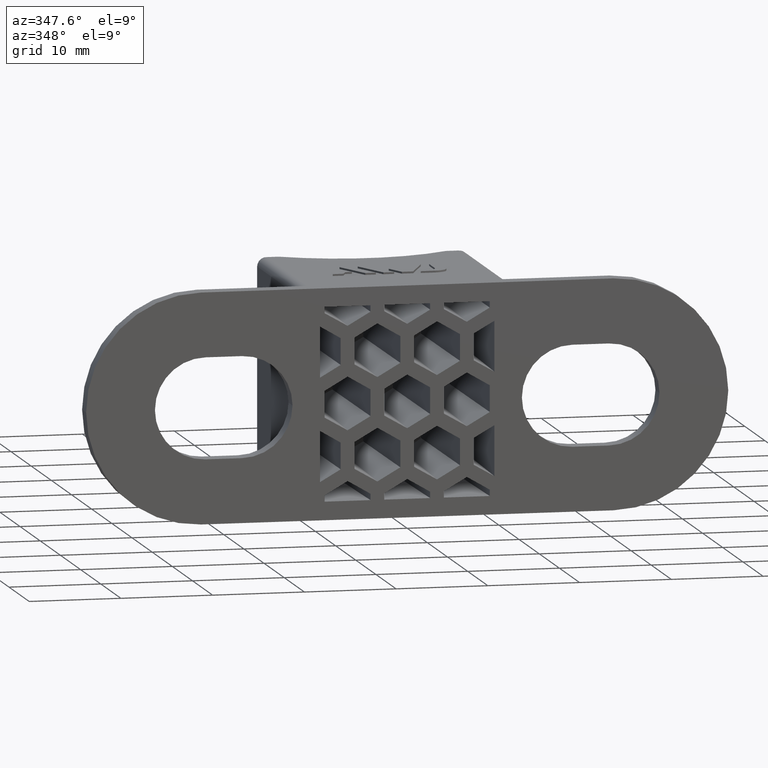
[diagram: clean part render]
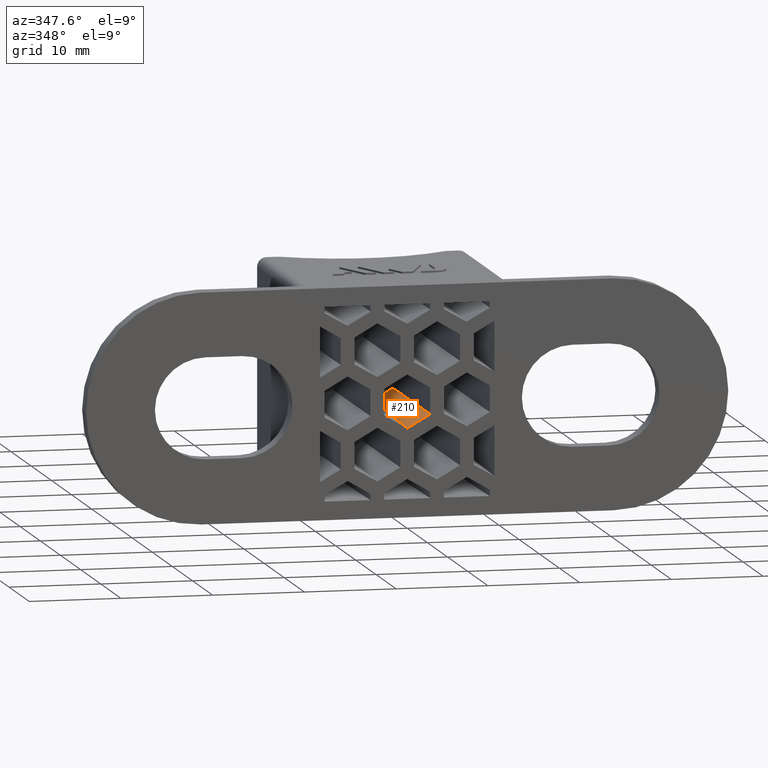
[diagram: same view with one face highlighted and labeled with its STEP entity id]
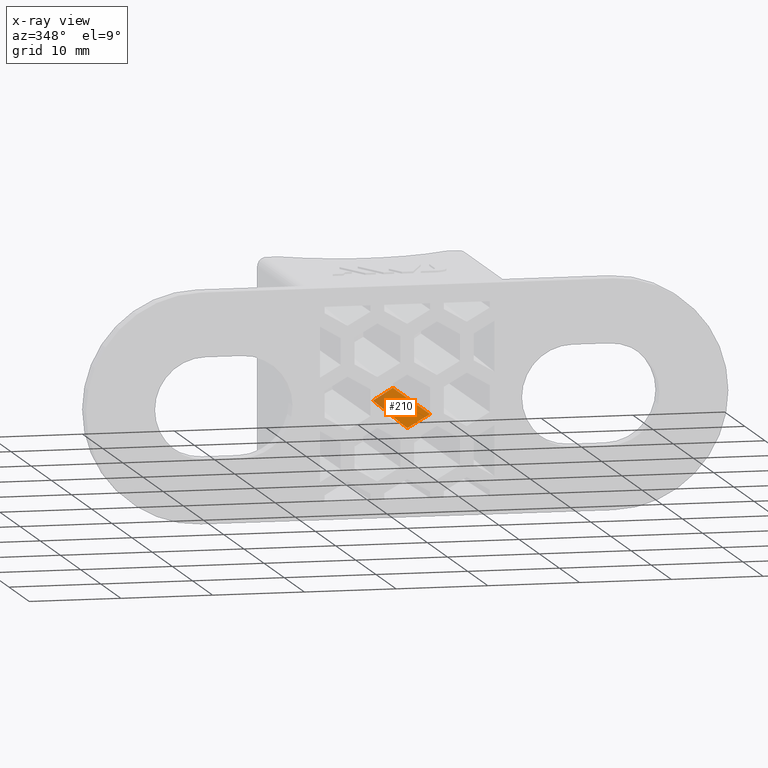
[diagram: x-ray of the same camera — body ghosted, the highlighted face saturated]
A machine part, auxiliary view. The second image highlights one B-rep face of the part: STEP entity #210.
The next image is the same camera in x-ray: the body ghosted, the highlighted face saturated — about 9% of this face is hidden behind the body in this view.
In plain terms, the highlighted planar face has unit normal (0.4999, 0.0175, -0.8659).
Its self-contained STEP definition (entity closure, byte-faithful):
#210 = ADVANCED_FACE( '', ( #558 ), #559, .F. );
#558 = FACE_OUTER_BOUND( '', #956, .T. );
#559 = PLANE( '', #957 );
#956 = EDGE_LOOP( '', ( #2173, #2174, #2175, #2176 ) );
#957 = AXIS2_PLACEMENT_3D( '', #2177, #2178, #2179 );
#2173 = ORIENTED_EDGE( '', *, *, #2829, .T. );
#2174 = ORIENTED_EDGE( '', *, *, #2945, .T. );
#2175 = ORIENTED_EDGE( '', *, *, #2672, .T. );
#2176 = ORIENTED_EDGE( '', *, *, #2788, .F. );
#2177 = CARTESIAN_POINT( '', ( 3.75000000000000, 0.000000000000000, -13.2216878364870 ) );
#2178 = DIRECTION( '', ( 0.499923847578195, 0.0174524064372835, -0.865893503920754 ) );
#2179 = DIRECTION( '', ( -0.866025403784439, 0.000000000000000, -0.500000000000000 ) );
#2672 = EDGE_CURVE( '', #3266, #3263, #3267, .T. );
#2788 = EDGE_CURVE( '', #3464, #3263, #3466, .T. );
#2829 = EDGE_CURVE( '', #3464, #3525, #3527, .T. );
#2945 = EDGE_CURVE( '', #3525, #3266, #3687, .T. );
#3263 = VERTEX_POINT( '', #4141 );
#3266 = VERTEX_POINT( '', #4145 );
#3267 = LINE( '', #4146, #4147 );
#3464 = VERTEX_POINT( '', #4415 );
#3466 = LINE( '', #4418, #4419 );
#3525 = VERTEX_POINT( '', #4508 );
#3527 = ELLIPSE( '', #4510, 20.2565326112035, 17.5400000000000 );
#3687 = LINE( '', #4753, #4754 );
#4141 = CARTESIAN_POINT( '', ( 2.50000000000000, 0.000000000000000, -13.9433756729741 ) );
#4145 = CARTESIAN_POINT( '', ( -4.00373078594587E-015, 0.000000000000000, -15.3867513459481 ) );
#4146 = CARTESIAN_POINT( '', ( 3.75000000000000, 0.000000000000000, -13.2216878364870 ) );
#4147 = VECTOR( '', #5036, 1000.00000000000 );
#4415 = CARTESIAN_POINT( '', ( 2.20084420434416, 17.1386240547420, -13.7706579938225 ) );
#4418 = CARTESIAN_POINT( '', ( 2.50025379630773, -0.0145399807321422, -13.9435222023407 ) );
#4419 = VECTOR( '', #5238, 1000.00000000000 );
#4508 = CARTESIAN_POINT( '', ( -3.98381080366243E-015, 17.0000000000000, -15.0441100071572 ) );
#4510 = AXIS2_PLACEMENT_3D( '', #5299, #5300, #5301 );
#4753 = CARTESIAN_POINT( '', ( -4.12006734808260E-015, 0.000000000000000, -15.3867513459481 ) );
#4754 = VECTOR( '', #5481, 1000.00000000000 );
#5036 = DIRECTION( '', ( 0.866025403784439, 0.000000000000000, 0.500000000000000 ) );
#5238 = DIRECTION( '', ( 0.0174515205435363, -0.999796942337605, -0.0100756400835790 ) );
#5299 = CARTESIAN_POINT( '', ( -1.73472347597681E-015, 34.5400000000000, -14.6905847670163 ) );
#5300 = DIRECTION( '', ( 0.499923847578195, 0.0174524064372835, -0.865893503920754 ) );
#5301 = DIRECTION( '', ( 0.865366346075250, 0.0302100515148758, 0.500228387706894 ) );
#5481 = DIRECTION( '', ( -8.01346332263367E-018, -0.999796942337605, -0.0201512801671579 ) );